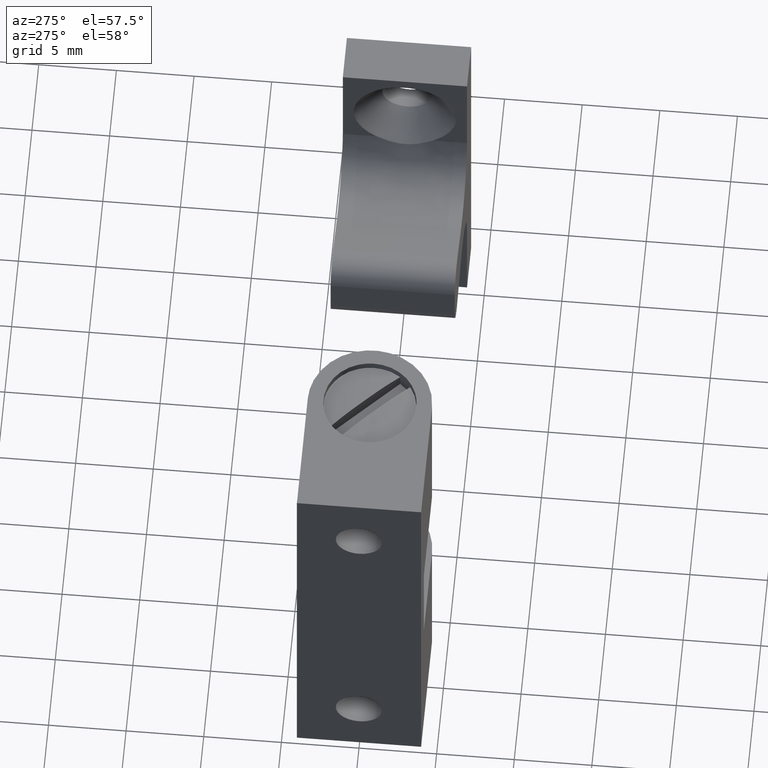
[diagram: clean part render]
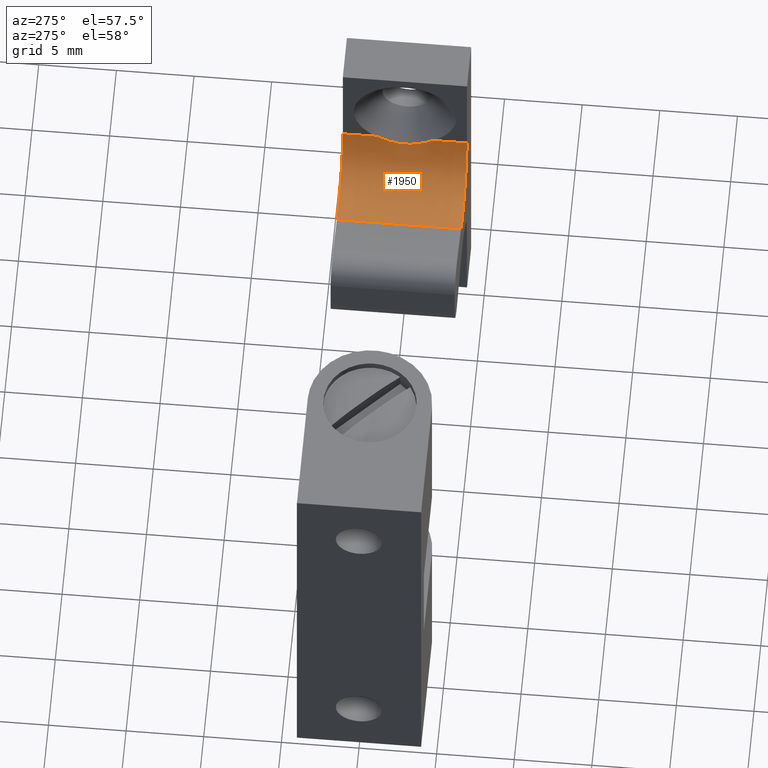
[diagram: same view with one face highlighted and labeled with its STEP entity id]
A machine part, auxiliary view. The second image highlights one B-rep face of the part: STEP entity #1950.
In plain terms, the highlighted face is a freeform B-spline surface patch.
Its self-contained STEP definition (entity closure, byte-faithful):
#1127=CARTESIAN_POINT('',(33.801787863870153,1.824143634695470,5.250000000000000));
#1128=VERTEX_POINT('',#1127);
#1146=CARTESIAN_POINT('',(33.801787863870153,-1.824143634695470,5.250000000000000));
#1147=VERTEX_POINT('',#1146);
#1148=CARTESIAN_POINT('',(33.801787863870153,1.824143634695470,5.250000000000000));
#1149=CARTESIAN_POINT('',(33.801787863870047,1.688026557722089,5.159710145623750));
#1150=CARTESIAN_POINT('',(33.798298244507350,1.548419478861706,5.077432203181120));
#1151=CARTESIAN_POINT('',(33.788017911410357,1.261016622200164,4.931308076615784));
#1152=CARTESIAN_POINT('',(33.781227582593523,1.113229698607840,4.867442201806145));
#1153=CARTESIAN_POINT('',(33.771260532535862,0.884189874749899,4.787969473218163));
#1154=CARTESIAN_POINT('',(33.767974063995553,0.806612501737770,4.764208925868998));
#1155=CARTESIAN_POINT('',(33.763421709958422,0.688199583347527,4.733085064031889));
#1156=CARTESIAN_POINT('',(33.761964404021683,0.648301346101709,4.723447950976233));
#1157=CARTESIAN_POINT('',(33.759249838705152,0.568497650685517,4.705908608856778));
#1158=CARTESIAN_POINT('',(33.757990080492569,0.528535392355044,4.697987821900468));
#1159=CARTESIAN_POINT('',(33.752274801365147,0.328418216348789,4.662667721403760));
#1160=CARTESIAN_POINT('',(33.749647758753120,0.167344920959431,4.648117750167397));
#1161=CARTESIAN_POINT('',(33.749567211471003,-0.075801161705379,4.647656580837741));
#1162=CARTESIAN_POINT('',(33.750168121791013,-0.157105727120641,4.651063817018237));
#1163=CARTESIAN_POINT('',(33.751978892239443,-0.279453066423576,4.661616956069138));
#1164=CARTESIAN_POINT('',(33.752733561381199,-0.320283698001663,4.666045847498009));
#1165=CARTESIAN_POINT('',(33.754503791466249,-0.401280602470135,4.676605386563154));
#1166=CARTESIAN_POINT('',(33.755520602946433,-0.441547697407294,4.682743452087760));
#1167=CARTESIAN_POINT('',(33.761170412782633,-0.641767684741781,4.717581399503068));
#1168=CARTESIAN_POINT('',(33.767540927105507,-0.798382041467789,4.758688686209681));
#1169=CARTESIAN_POINT('',(33.780874041811003,-1.105419923876652,4.864266323942821));
#1170=CARTESIAN_POINT('',(33.787832788731549,-1.256417770172825,4.929125689249831));
#1171=CARTESIAN_POINT('',(33.798275531141648,-1.547219349102418,5.076669292767770));
#1172=CARTESIAN_POINT('',(33.801787863870040,-1.687721220407591,5.159507607762412));
#1173=CARTESIAN_POINT('',(33.801787863870153,-1.824143634695470,5.250000000000000));
#1174=B_SPLINE_CURVE_WITH_KNOTS('',3,(#1148,#1149,#1150,#1151,#1152,#1153,#1154,#1155,#1156,#1157,#1158,#1159,#1160,#1161,#1162,#1163,#1164,#1165,#1166,#1167,#1168,#1169,#1170,#1171,#1172,#1173),.UNSPECIFIED.,.F.,.U.,(4,2,2,2,2,2,2,2,2,2,2,2,4),(0.0,0.125000000000000,0.250000000000000,0.312500000000000,0.343749999999999,0.374999999999999,0.499999999999999,0.562499999999999,0.593749999999999,0.624999999999999,0.749999999999999,0.875000000000000,1.0),.UNSPECIFIED.);
#1175=EDGE_CURVE('',#1128,#1147,#1174,.T.);
#1446=CARTESIAN_POINT('',(29.410041311224550,4.0,1.865507706339850));
#1447=VERTEX_POINT('',#1446);
#1453=CARTESIAN_POINT('',(33.801787863870047,4.0,5.250000000000000));
#1454=VERTEX_POINT('',#1453);
#1455=CARTESIAN_POINT('',(29.410041311224550,4.0,1.865507706339862));
#1456=CARTESIAN_POINT('',(31.074699532917457,4.0,1.426903300796280));
#1457=CARTESIAN_POINT('',(32.438243698393748,4.0,2.477716380467245));
#1458=CARTESIAN_POINT('',(33.801787863870054,4.0,3.528529460138213));
#1459=CARTESIAN_POINT('',(33.801787863870047,4.0,5.250000000000000));
#1467=(BOUNDED_CURVE()B_SPLINE_CURVE(2,(#1455,#1456,#1457,#1458,#1459),.UNSPECIFIED.,.F.,.U.)B_SPLINE_CURVE_WITH_KNOTS((3,2,3),(0.0,0.500000000000000,1.0),.UNSPECIFIED.)CURVE()GEOMETRIC_REPRESENTATION_ITEM()RATIONAL_B_SPLINE_CURVE((1.0,0.897333815455836,1.0,0.897333815455836,1.0))REPRESENTATION_ITEM(''));
#1468=EDGE_CURVE('',#1447,#1454,#1467,.T.);
#1578=CARTESIAN_POINT('',(29.410041311224550,-4.0,1.865507706339850));
#1579=VERTEX_POINT('',#1578);
#1678=CARTESIAN_POINT('',(33.801787863870047,-4.0,5.250000000000000));
#1679=VERTEX_POINT('',#1678);
#1685=CARTESIAN_POINT('',(29.410041311224550,-4.0,1.865507706339862));
#1686=CARTESIAN_POINT('',(31.074699532917457,-4.0,1.426903300796280));
#1687=CARTESIAN_POINT('',(32.438243698393748,-4.0,2.477716380467245));
#1688=CARTESIAN_POINT('',(33.801787863870054,-4.0,3.528529460138213));
#1689=CARTESIAN_POINT('',(33.801787863870047,-4.0,5.250000000000000));
#1697=(BOUNDED_CURVE()B_SPLINE_CURVE(2,(#1685,#1686,#1687,#1688,#1689),.UNSPECIFIED.,.F.,.U.)B_SPLINE_CURVE_WITH_KNOTS((3,2,3),(0.0,0.500000000000000,1.0),.UNSPECIFIED.)CURVE()GEOMETRIC_REPRESENTATION_ITEM()RATIONAL_B_SPLINE_CURVE((1.0,0.897333815455836,1.0,0.897333815455836,1.0))REPRESENTATION_ITEM(''));
#1698=EDGE_CURVE('',#1579,#1679,#1697,.T.);
#1908=CARTESIAN_POINT('',(33.801787863870047,-4.0,5.250000000000000));
#1909=CARTESIAN_POINT('',(33.801787863870153,-1.824143634695470,5.250000000000000));
#1910=QUASI_UNIFORM_CURVE('',1,(#1908,#1909),.UNSPECIFIED.,.F.,.U.);
#1911=EDGE_CURVE('',#1679,#1147,#1910,.T.);
#1916=CARTESIAN_POINT('',(33.801787863870153,1.824143634695470,5.250000000000000));
#1917=CARTESIAN_POINT('',(33.801787863870047,4.0,5.250000000000000));
#1918=QUASI_UNIFORM_CURVE('',1,(#1916,#1917),.UNSPECIFIED.,.F.,.U.);
#1919=EDGE_CURVE('',#1128,#1454,#1918,.T.);
#1924=CARTESIAN_POINT('',(29.263260575955659,-4.200000000000000,1.907626431372884));
#1925=CARTESIAN_POINT('',(29.263260575955659,4.205000000000000,1.907626431372884));
#1926=CARTESIAN_POINT('',(34.036664725778003,-4.200000000000001,0.424455755190654));
#1927=CARTESIAN_POINT('',(34.036664725778003,4.205000000000000,0.424455755190654));
#1928=CARTESIAN_POINT('',(33.797788894078913,-4.200000000000000,5.417262658051815));
#1929=CARTESIAN_POINT('',(33.797788894078913,4.205000000000000,5.417262658051815));
#1937=(BOUNDED_SURFACE()B_SPLINE_SURFACE(1,2,((#1924,#1926,#1928),(#1925,#1927,#1929)),.UNSPECIFIED.,.F.,.F.,.U.)B_SPLINE_SURFACE_WITH_KNOTS((2,2),(3,3),(0.0,8.405000000000001),(0.0,7.287938707724443),.UNSPECIFIED.)GEOMETRIC_REPRESENTATION_ITEM()RATIONAL_B_SPLINE_SURFACE(((1.0,0.573576436351047,1.0),(1.0,0.573576436351047,1.0)))REPRESENTATION_ITEM('')SURFACE());
#1938=ORIENTED_EDGE('',*,*,#1175,.F.);
#1939=ORIENTED_EDGE('',*,*,#1919,.T.);
#1940=ORIENTED_EDGE('',*,*,#1468,.F.);
#1941=CARTESIAN_POINT('',(29.410041311224550,-4.0,1.865507706339850));
#1942=CARTESIAN_POINT('',(29.410041311224550,4.0,1.865507706339850));
#1943=QUASI_UNIFORM_CURVE('',1,(#1941,#1942),.UNSPECIFIED.,.F.,.U.);
#1944=EDGE_CURVE('',#1579,#1447,#1943,.T.);
#1945=ORIENTED_EDGE('',*,*,#1944,.F.);
#1946=ORIENTED_EDGE('',*,*,#1698,.T.);
#1947=ORIENTED_EDGE('',*,*,#1911,.T.);
#1948=EDGE_LOOP('',(#1938,#1939,#1940,#1945,#1946,#1947));
#1949=FACE_OUTER_BOUND('',#1948,.T.);
#1950=ADVANCED_FACE('',(#1949),#1937,.F.);